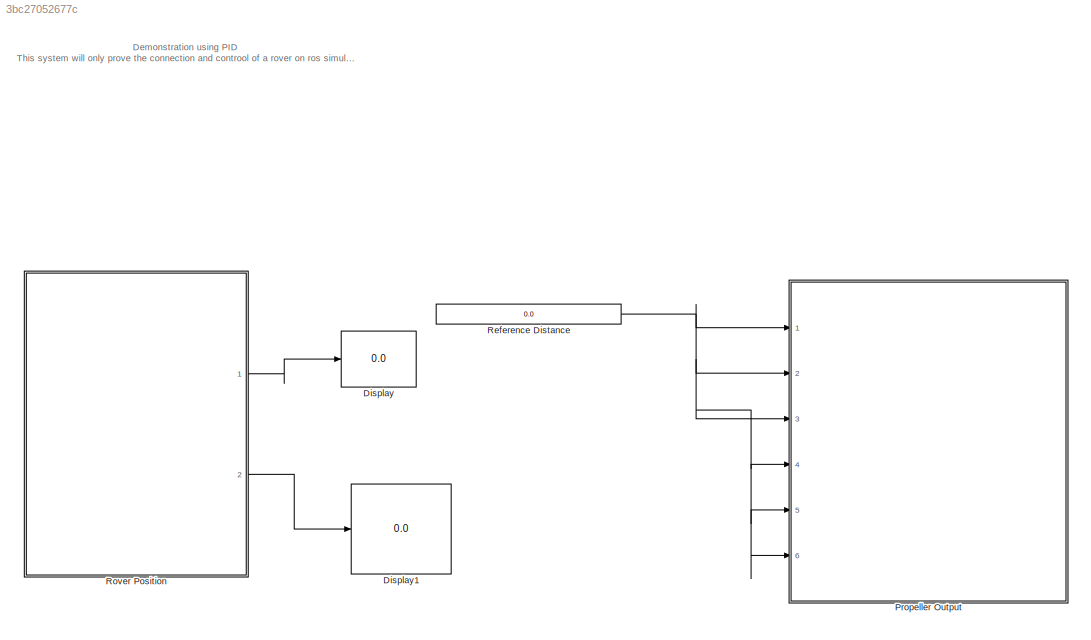
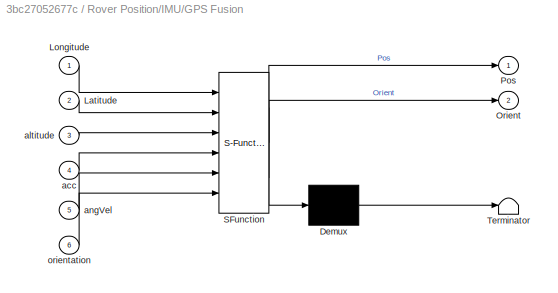
MODEL slx_3bc27052677c
KIND model
CONFIG AbsTol = auto
CONFIG EnableMultiTasking = off
CONFIG FixedStep = auto
CONFIG MaxStep = auto
CONFIG MinStep = auto
CONFIG RelTol = 1e-3
CONFIG SampleTimeConstraint = Unconstrained
CONFIG Solver = VariableStepAuto
CONFIG SolverName = VariableStepAuto
CONFIG StartTime = 0.0
CONFIG StopTime = 10.0
BLOCK [Display] Display
  Decimation = 1
  Ports = [1]
BLOCK [Display] Display1
  Decimation = 1
  Ports = [1]
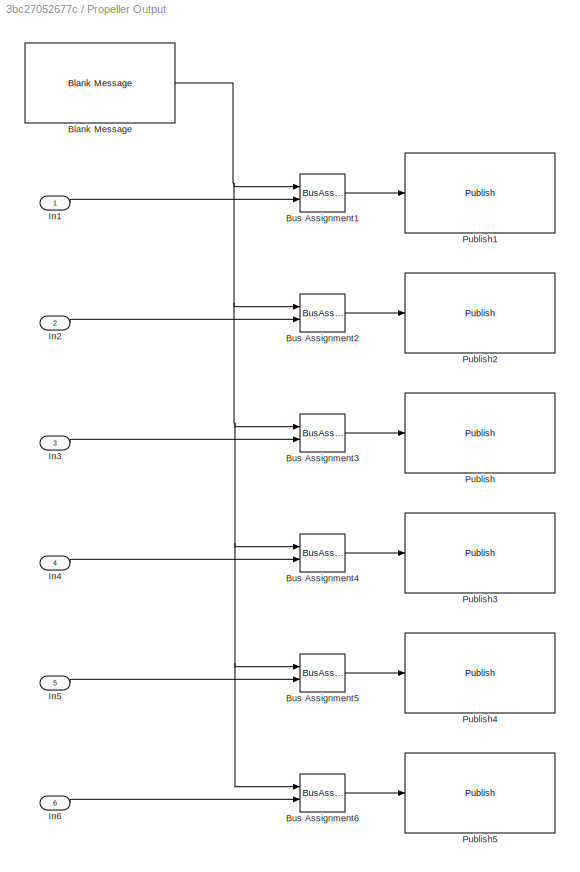
BLOCK [SubSystem] Propeller Output
  Ports = [6]
  RequestExecContextInheritance = off
BLOCK [Reference] Propeller Output/Blank Message  REF=robotlib/Blank Message
  Ports = [0, 1]
  SourceBlock = robotlib/Blank Message
  SourceProductBaseCode = RR
  SourceType = ROS Blank Message
BLOCK [BusAssignment] Propeller Output/Bus Assignment1
  AssignedSignals = Data
  Ports = [2, 1]
BLOCK [BusAssignment] Propeller Output/Bus Assignment2
  AssignedSignals = Data
  Ports = [2, 1]
BLOCK [BusAssignment] Propeller Output/Bus Assignment3
  AssignedSignals = Data
  Ports = [2, 1]
BLOCK [BusAssignment] Propeller Output/Bus Assignment4
  AssignedSignals = Data
  Ports = [2, 1]
BLOCK [BusAssignment] Propeller Output/Bus Assignment5
  AssignedSignals = Data
  Ports = [2, 1]
BLOCK [BusAssignment] Propeller Output/Bus Assignment6
  AssignedSignals = Data
  Ports = [2, 1]
BLOCK [Inport] Propeller Output/In1
  IconDisplay = Signal name
BLOCK [Inport] Propeller Output/In2
  IconDisplay = Signal name
  Port = 2
BLOCK [Inport] Propeller Output/In3
  IconDisplay = Signal name
  Port = 3
BLOCK [Inport] Propeller Output/In4
  IconDisplay = Signal name
  Port = 4
BLOCK [Inport] Propeller Output/In5
  IconDisplay = Signal name
  Port = 5
BLOCK [Inport] Propeller Output/In6
  IconDisplay = Signal name
  Port = 6
BLOCK [Reference] Propeller Output/Publish  REF=robotlib/Publish
  Ports = [1]
  SourceBlock = robotlib/Publish
  SourceProductBaseCode = RR
  SourceType = ROS Publish
BLOCK [Reference] Propeller Output/Publish1  REF=robotlib/Publish
  Ports = [1]
  SourceBlock = robotlib/Publish
  SourceProductBaseCode = RR
  SourceType = ROS Publish
BLOCK [Reference] Propeller Output/Publish2  REF=robotlib/Publish
  Ports = [1]
  SourceBlock = robotlib/Publish
  SourceProductBaseCode = RR
  SourceType = ROS Publish
BLOCK [Reference] Propeller Output/Publish3  REF=robotlib/Publish
  Ports = [1]
  SourceBlock = robotlib/Publish
  SourceProductBaseCode = RR
  SourceType = ROS Publish
BLOCK [Reference] Propeller Output/Publish4  REF=robotlib/Publish
  Ports = [1]
  SourceBlock = robotlib/Publish
  SourceProductBaseCode = RR
  SourceType = ROS Publish
BLOCK [Reference] Propeller Output/Publish5  REF=robotlib/Publish
  Ports = [1]
  SourceBlock = robotlib/Publish
  SourceProductBaseCode = RR
  SourceType = ROS Publish
BLOCK [Constant] Reference Distance
  Value = 0.0
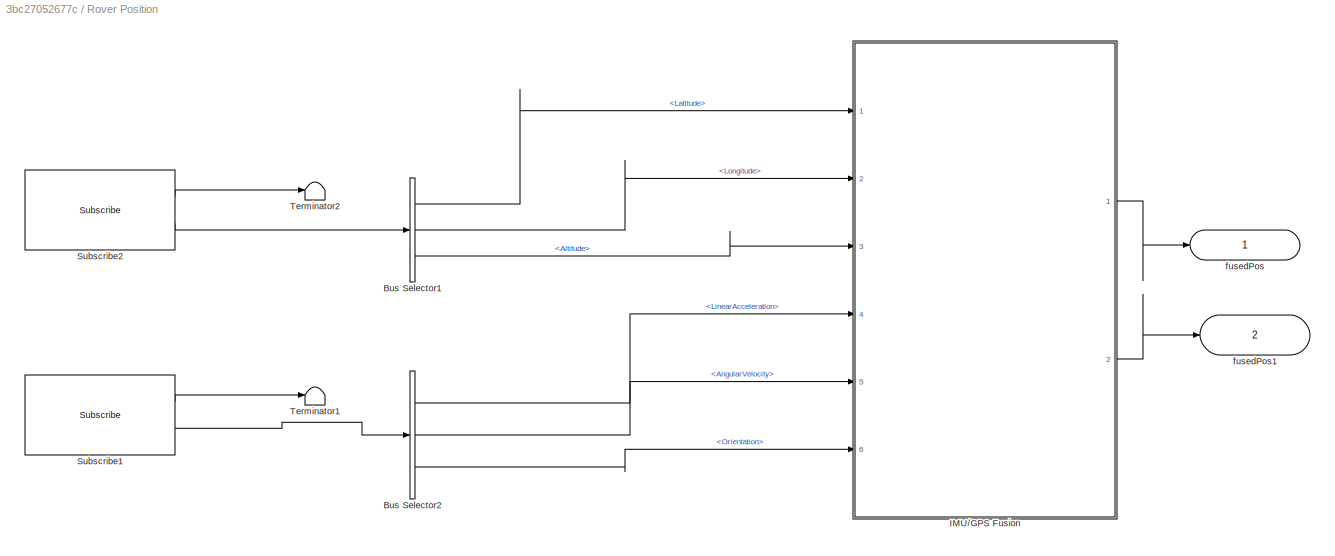
BLOCK [SubSystem] Rover Position
  Ports = [0, 2]
  RequestExecContextInheritance = off
BLOCK [BusSelector] Rover Position/Bus Selector1
  OutputSignals = Latitude,Longitude,Altitude
  Ports = [1, 3]
BLOCK [BusSelector] Rover Position/Bus Selector2
  OutputSignals = LinearAcceleration,AngularVelocity,Orientation
  Ports = [1, 3]
BLOCK [SubSystem] Rover Position/IMU//GPS Fusion
  ErrorFcn = Stateflow.Translate.translate
  PermitHierarchicalResolution = ExplicitOnly
  Ports = [6, 2]
  RequestExecContextInheritance = off
  SFBlockType = MATLAB Function
  TreatAsAtomicUnit = on
BLOCK [Demux] Rover Position/IMU//GPS Fusion/ Demux 
  Outputs = 1
  Ports = [1, 1]
BLOCK [S-Function] Rover Position/IMU//GPS Fusion/ SFunction 
  EnableBusSupport = on
  FunctionName = sf_sfun
  PortCounts = [6 3]
  Ports = [6, 3]
  SFcnIsStateOwnerBlock = off
  SFunctionDeploymentMode = off
  Tag = Stateflow S-Function 2
BLOCK [Terminator] Rover Position/IMU//GPS Fusion/ Terminator 
BLOCK [Inport] Rover Position/IMU//GPS Fusion/Latitude
  Port = 2
BLOCK [Inport] Rover Position/IMU//GPS Fusion/Longitude
BLOCK [Outport] Rover Position/IMU//GPS Fusion/Orient
  Port = 2
BLOCK [Outport] Rover Position/IMU//GPS Fusion/Pos
BLOCK [Inport] Rover Position/IMU//GPS Fusion/acc
  Port = 4
BLOCK [Inport] Rover Position/IMU//GPS Fusion/altitude
  Port = 3
BLOCK [Inport] Rover Position/IMU//GPS Fusion/angVel
  Port = 5
BLOCK [Inport] Rover Position/IMU//GPS Fusion/orientation
  Port = 6
BLOCK [Reference] Rover Position/Subscribe1  REF=robotlib/Subscribe
  Ports = [0, 2]
  SourceBlock = robotlib/Subscribe
  SourceProductBaseCode = RR
  SourceType = ROS Subscribe
BLOCK [Reference] Rover Position/Subscribe2  REF=robotlib/Subscribe
  Ports = [0, 2]
  SourceBlock = robotlib/Subscribe
  SourceProductBaseCode = RR
  SourceType = ROS Subscribe
BLOCK [Terminator] Rover Position/Terminator1
BLOCK [Terminator] Rover Position/Terminator2
BLOCK [Outport] Rover Position/fusedPos
  IconDisplay = Signal name
BLOCK [Outport] Rover Position/fusedPos1
  IconDisplay = Signal name
  Port = 2
ANNOTATION (root): Demonstration using PID This system will only prove the connection and controol of a rover on ros simulation in gazebo.
NET Propeller Output/Blank Message:1 -> Propeller Output/Bus Assignment1:1, Propeller Output/Bus Assignment2:1, Propeller Output/Bus Assignment3:1, Propeller Output/Bus Assignment4:1, Propeller Output/Bus Assignment5:1, Propeller Output/Bus Assignment6:1
LINE Propeller Output/Bus Assignment1:1 -> Propeller Output/Publish1:1
LINE Propeller Output/Bus Assignment2:1 -> Propeller Output/Publish2:1
LINE Propeller Output/Bus Assignment3:1 -> Propeller Output/Publish:1
LINE Propeller Output/Bus Assignment4:1 -> Propeller Output/Publish3:1
LINE Propeller Output/Bus Assignment5:1 -> Propeller Output/Publish4:1
LINE Propeller Output/Bus Assignment6:1 -> Propeller Output/Publish5:1
LINE Propeller Output/In1:1 -> Propeller Output/Bus Assignment1:2
LINE Propeller Output/In2:1 -> Propeller Output/Bus Assignment2:2
LINE Propeller Output/In3:1 -> Propeller Output/Bus Assignment3:2
LINE Propeller Output/In4:1 -> Propeller Output/Bus Assignment4:2
LINE Propeller Output/In5:1 -> Propeller Output/Bus Assignment5:2
LINE Propeller Output/In6:1 -> Propeller Output/Bus Assignment6:2
NET Reference Distance:1 -> Propeller Output:1, Propeller Output:2, Propeller Output:3, Propeller Output:4, Propeller Output:5, Propeller Output:6
LINE Rover Position/Bus Selector1:1 -> Rover Position/IMU//GPS Fusion:1
LINE Rover Position/Bus Selector1:2 -> Rover Position/IMU//GPS Fusion:2
LINE Rover Position/Bus Selector1:3 -> Rover Position/IMU//GPS Fusion:3
LINE Rover Position/Bus Selector2:1 -> Rover Position/IMU//GPS Fusion:4
LINE Rover Position/Bus Selector2:2 -> Rover Position/IMU//GPS Fusion:5
LINE Rover Position/Bus Selector2:3 -> Rover Position/IMU//GPS Fusion:6
LINE Rover Position/IMU//GPS Fusion:1 -> Rover Position/fusedPos:1
LINE Rover Position/IMU//GPS Fusion:2 -> Rover Position/fusedPos1:1
LINE Rover Position/Subscribe1:1 -> Rover Position/Terminator1:1
LINE Rover Position/Subscribe1:2 -> Rover Position/Bus Selector2:1
LINE Rover Position/Subscribe2:1 -> Rover Position/Terminator2:1
LINE Rover Position/Subscribe2:2 -> Rover Position/Bus Selector1:1
LINE Rover Position:1 -> Display:1
LINE Rover Position:2 -> Display1:1
note: NET lines group one-source signal fan-out (src -> all destinations, sorted); 1:1 wires keep LINE
CHART Rover Position/IMU//GPS Fusion states=1 transitions=1
  STATE_LABEL 'eML_blk_kernel()'
  STATE_LABEL 'SCRIPT:\nfunction [Pos, Orient]= fcn(Longitude, Latitude,altitude,acc,angVel,orientation)\nimuFs = 100;\nRmag = 0.09; % Magnetometer measurement noise\nRvel = 0.01; % GPS Velocity measurement noise\nRpos = 2.56; % GPS Position measurement noise\n\nrefloc = [-56.7189766963 -3.515625 -0.0996294077486];\nfusionfilter = insfilterMARG;\nfusionfilter.IMUSampleRate = imuFs;\nfusionfilter.ReferenceLocation = refloc...<+406ch>'
CHART  states=0 transitions=0
